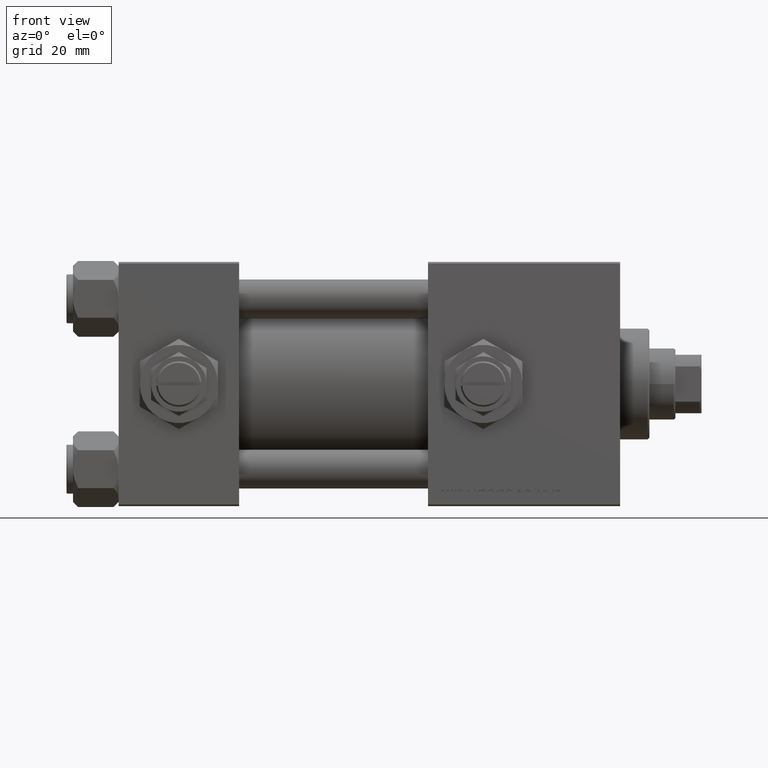
[diagram: clean part render]
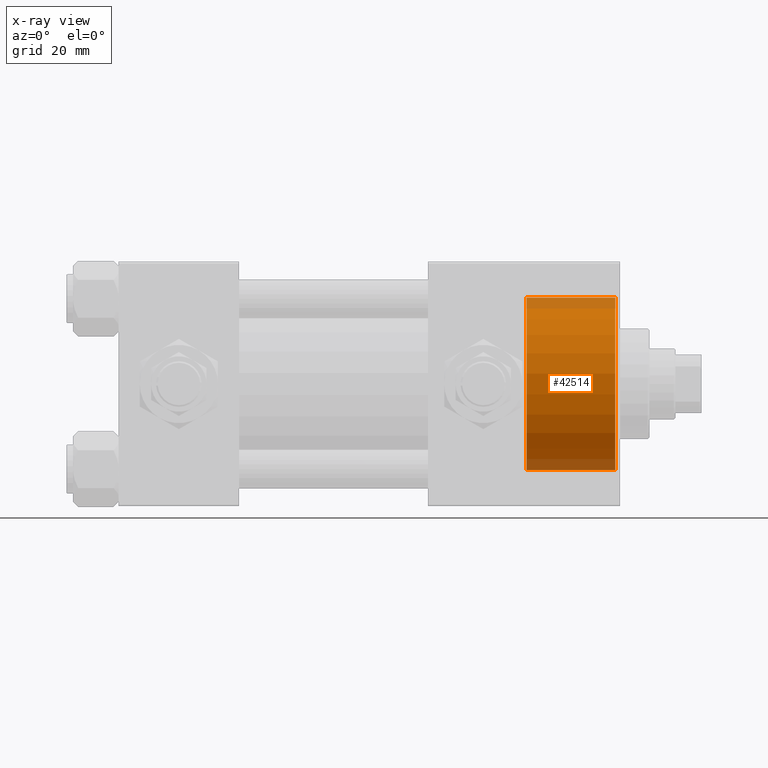
[diagram: x-ray — body ghosted, one internal face saturated and labeled with its STEP entity id]
A machine part, front view, then the same camera in x-ray: the body is ghosted and one INTERNAL B-rep face — a face not visible from any outside direction — is saturated and labeled: STEP entity #42514.
In plain terms, the highlighted cylindrical surface (partial cylindrical patch) has radius 26.5 mm, axis along (1, 0, 0).
Its self-contained STEP definition (entity closure, byte-faithful):
#216 = VERTEX_POINT ( 'NONE', #48012 ) ;
#3285 = EDGE_CURVE ( 'NONE', #40989, #216, #38746, .T. ) ;
#7139 = ORIENTED_EDGE ( 'NONE', *, *, #3285, .T. ) ;
#7700 = CARTESIAN_POINT ( 'NONE',  ( 125.2999999999999972, 0.000000000000000000, -26.50000000000000355 ) ) ;
#8799 = ORIENTED_EDGE ( 'NONE', *, *, #46333, .T. ) ;
#8871 = AXIS2_PLACEMENT_3D ( 'NONE', #8881, #49258, #45311 ) ;
#8881 = CARTESIAN_POINT ( 'NONE',  ( 125.2999999999999972, 0.000000000000000000, 0.000000000000000000 ) ) ;
#11937 = CARTESIAN_POINT ( 'NONE',  ( 125.2999999999999972, 0.000000000000000000, -26.50000000000000355 ) ) ;
#12026 = DIRECTION ( 'NONE',  ( 1.000000000000000000, 0.000000000000000000, 0.000000000000000000 ) ) ;
#13663 = CARTESIAN_POINT ( 'NONE',  ( 125.2999999999999972, 3.245314017740486554E-15, 26.50000000000000355 ) ) ;
#15569 = CARTESIAN_POINT ( 'NONE',  ( 152.5000000000000568, 3.245314017740486554E-15, 26.50000000000000355 ) ) ;
#16465 = CIRCLE ( 'NONE', #8871, 26.50000000000000355 ) ;
#16941 = DIRECTION ( 'NONE',  ( 1.000000000000000000, -0.000000000000000000, -0.000000000000000000 ) ) ;
#19081 = VECTOR ( 'NONE', #16941, 1000.000000000000000 ) ;
#20430 = CARTESIAN_POINT ( 'NONE',  ( 125.2999999999999972, 0.000000000000000000, 0.000000000000000000 ) ) ;
#23296 = LINE ( 'NONE', #7700, #41669 ) ;
#24393 = DIRECTION ( 'NONE',  ( 1.000000000000000000, -0.000000000000000000, -0.000000000000000000 ) ) ;
#28047 = CARTESIAN_POINT ( 'NONE',  ( 125.2999999999999972, 3.245314017740486554E-15, 26.50000000000000355 ) ) ;
#28143 = DIRECTION ( 'NONE',  ( 0.000000000000000000, 0.000000000000000000, 1.000000000000000000 ) ) ;
#29456 = AXIS2_PLACEMENT_3D ( 'NONE', #36061, #12026, #28143 ) ;
#32102 = ORIENTED_EDGE ( 'NONE', *, *, #36994, .F. ) ;
#34112 = AXIS2_PLACEMENT_3D ( 'NONE', #20430, #24393, #52106 ) ;
#35175 = VERTEX_POINT ( 'NONE', #13663 ) ;
#36061 = CARTESIAN_POINT ( 'NONE',  ( 152.5000000000000568, 0.000000000000000000, 0.000000000000000000 ) ) ;
#36554 = FACE_OUTER_BOUND ( 'NONE', #50319, .T. ) ;
#36994 = EDGE_CURVE ( 'NONE', #46314, #216, #23296, .T. ) ;
#38746 = CIRCLE ( 'NONE', #29456, 26.50000000000000355 ) ;
#40989 = VERTEX_POINT ( 'NONE', #15569 ) ;
#41669 = VECTOR ( 'NONE', #47561, 1000.000000000000000 ) ;
#42514 = ADVANCED_FACE ( 'NONE', ( #36554 ), #47643, .F. ) ;
#43880 = EDGE_CURVE ( 'NONE', #35175, #46314, #16465, .T. ) ;
#45311 = DIRECTION ( 'NONE',  ( 0.000000000000000000, 0.000000000000000000, -1.000000000000000000 ) ) ;
#46314 = VERTEX_POINT ( 'NONE', #11937 ) ;
#46333 = EDGE_CURVE ( 'NONE', #35175, #40989, #48092, .T. ) ;
#47561 = DIRECTION ( 'NONE',  ( 1.000000000000000000, -0.000000000000000000, -0.000000000000000000 ) ) ;
#47643 = CYLINDRICAL_SURFACE ( 'NONE', #34112, 26.50000000000000355 ) ;
#48012 = CARTESIAN_POINT ( 'NONE',  ( 152.5000000000000568, 0.000000000000000000, -26.50000000000000355 ) ) ;
#48092 = LINE ( 'NONE', #28047, #19081 ) ;
#49258 = DIRECTION ( 'NONE',  ( 1.000000000000000000, 0.000000000000000000, 0.000000000000000000 ) ) ;
#49673 = ORIENTED_EDGE ( 'NONE', *, *, #43880, .F. ) ;
#50319 = EDGE_LOOP ( 'NONE', ( #49673, #8799, #7139, #32102 ) ) ;
#52106 = DIRECTION ( 'NONE',  ( 0.000000000000000000, 0.000000000000000000, -1.000000000000000000 ) ) ;